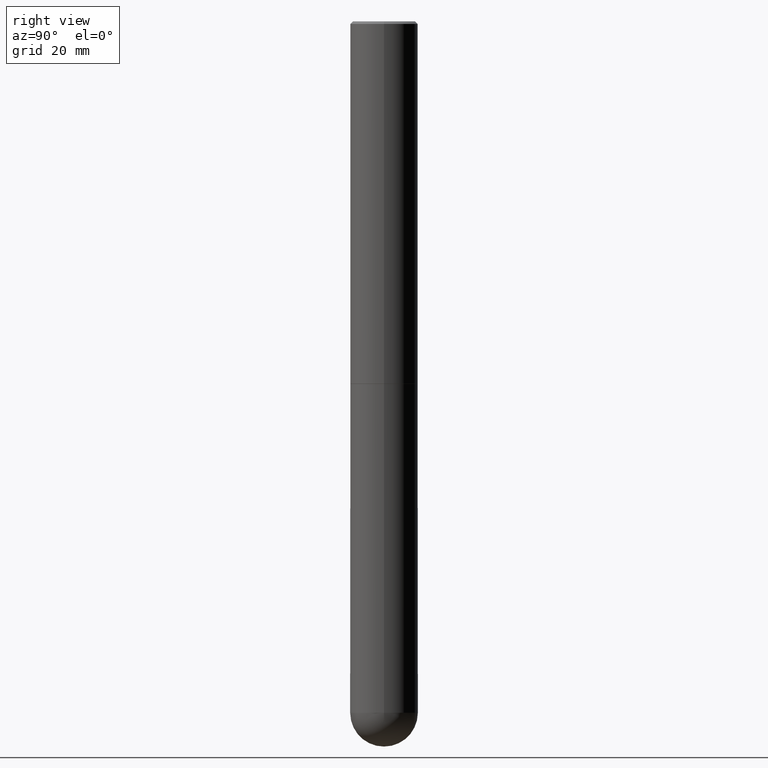
[diagram: clean part render]
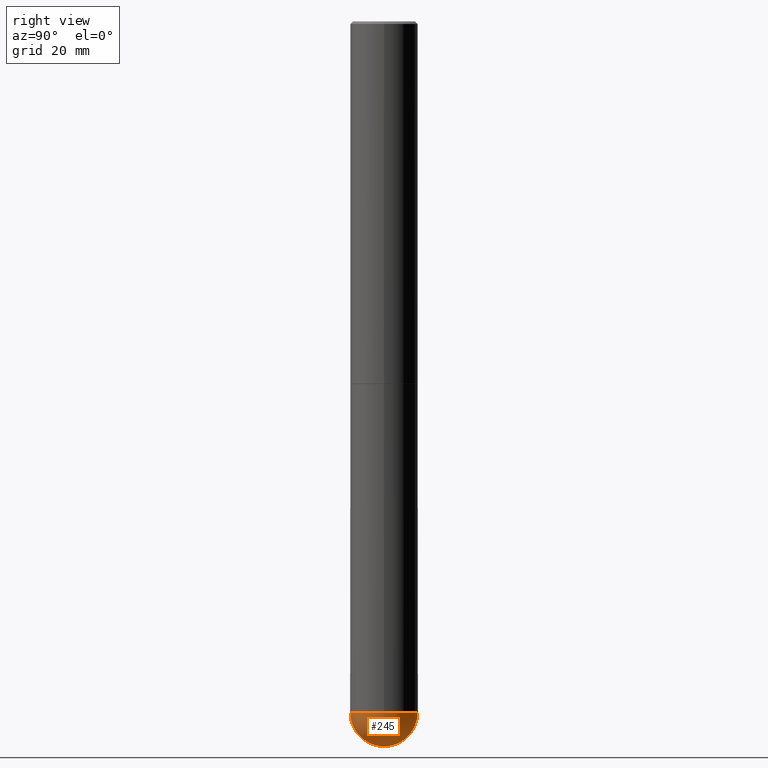
[diagram: same view with one face highlighted and labeled with its STEP entity id]
A machine part, right view. The second image highlights one B-rep face of the part: STEP entity #245.
In plain terms, the highlighted spherical surface has radius 7.0002 mm.
Its self-contained STEP definition (entity closure, byte-faithful):
#8 = CIRCLE ( 'NONE', #143, 0.2756000000000000671 ) ;
#16 = VERTEX_POINT ( 'NONE', #103 ) ;
#19 = DIRECTION ( 'NONE',  ( -1.000000000000000000, 6.982962677686265922E-15, -4.883557194083112901E-29 ) ) ;
#31 = SPHERICAL_SURFACE ( 'NONE', #364, 0.2756000000000000671 ) ;
#45 = CARTESIAN_POINT ( 'NONE',  ( 1.376774483194169922E-28, -1.965669078955302449E-14, -5.629900000000000126 ) ) ;
#64 = DIRECTION ( 'NONE',  ( -2.445468806185136597E-29, 3.491481338843145583E-15, 1.000000000000000000 ) ) ;
#81 = AXIS2_PLACEMENT_3D ( 'NONE', #183, #179, #313 ) ;
#84 = DIRECTION ( 'NONE',  ( -1.000000000000000000, 7.105427357601001070E-15, -4.926315508542082329E-29 ) ) ;
#95 = VERTEX_POINT ( 'NONE', #382 ) ;
#103 = CARTESIAN_POINT ( 'NONE',  ( 0.2756000000000000671, -1.690749838334792865E-14, -5.629900000000000126 ) ) ;
#107 = EDGE_CURVE ( 'NONE', #361, #16, #132, .T. ) ;
#111 = DIRECTION ( 'NONE',  ( -7.105427357601001859E-15, -1.000000000000000000, 0.000000000000000000 ) ) ;
#118 = CIRCLE ( 'NONE', #270, 0.2756000000000000671 ) ;
#132 = CIRCLE ( 'NONE', #309, 0.2756000000000000671 ) ;
#143 = AXIS2_PLACEMENT_3D ( 'NONE', #339, #84, #111 ) ;
#164 = DIRECTION ( 'NONE',  ( -2.445468806185136597E-29, 3.491481338843145583E-15, 1.000000000000000000 ) ) ;
#179 = DIRECTION ( 'NONE',  ( 1.000000000000000000, -6.982962677686265922E-15, 4.883557194083112340E-29 ) ) ;
#183 = CARTESIAN_POINT ( 'NONE',  ( 1.343662505402781410E-28, -2.013087315769307636E-14, -5.629900000000000126 ) ) ;
#189 = EDGE_LOOP ( 'NONE', ( #327, #404, #289, #217 ) ) ;
#196 = DIRECTION ( 'NONE',  ( 1.000000000000000000, -6.982962677686264344E-15, 0.000000000000000000 ) ) ;
#217 = ORIENTED_EDGE ( 'NONE', *, *, #107, .F. ) ;
#232 = EDGE_CURVE ( 'NONE', #95, #316, #280, .T. ) ;
#245 = ADVANCED_FACE ( 'NONE', ( #381 ), #31, .T. ) ;
#249 = CARTESIAN_POINT ( 'NONE',  ( 1.343662505402781410E-28, -2.013087315769307636E-14, -5.629900000000000126 ) ) ;
#270 = AXIS2_PLACEMENT_3D ( 'NONE', #45, #64, #196 ) ;
#274 = DIRECTION ( 'NONE',  ( 6.982962677686265922E-15, 1.000000000000000000, -3.964946289788479319E-15 ) ) ;
#280 = CIRCLE ( 'NONE', #81, 0.2756000000000000671 ) ;
#288 = DIRECTION ( 'NONE',  ( 1.000000000000000000, -6.982962677686264344E-15, 0.000000000000000000 ) ) ;
#289 = ORIENTED_EDGE ( 'NONE', *, *, #338, .F. ) ;
#290 = CARTESIAN_POINT ( 'NONE',  ( 1.924504513970471427E-15, 0.2755999999999801942, -5.629900000000001015 ) ) ;
#309 = AXIS2_PLACEMENT_3D ( 'NONE', #393, #164, #288 ) ;
#313 = DIRECTION ( 'NONE',  ( 6.982962677686267499E-15, 1.000000000000000000, 0.000000000000000000 ) ) ;
#316 = VERTEX_POINT ( 'NONE', #290 ) ;
#317 = CARTESIAN_POINT ( 'NONE',  ( -1.958255779754700116E-15, -0.2756000000000199956, -5.629899999999999238 ) ) ;
#327 = ORIENTED_EDGE ( 'NONE', *, *, #398, .F. ) ;
#338 = EDGE_CURVE ( 'NONE', #16, #316, #118, .T. ) ;
#339 = CARTESIAN_POINT ( 'NONE',  ( 1.343662505402781410E-28, -2.013087315769307636E-14, -5.629900000000000126 ) ) ;
#361 = VERTEX_POINT ( 'NONE', #317 ) ;
#364 = AXIS2_PLACEMENT_3D ( 'NONE', #249, #19, #274 ) ;
#381 = FACE_OUTER_BOUND ( 'NONE', #189, .T. ) ;
#382 = CARTESIAN_POINT ( 'NONE',  ( 1.412238044847732931E-28, -2.107624978178599697E-14, -5.905499999999999972 ) ) ;
#393 = CARTESIAN_POINT ( 'NONE',  ( 1.376774483194169922E-28, -1.965669078955302449E-14, -5.629900000000000126 ) ) ;
#398 = EDGE_CURVE ( 'NONE', #95, #361, #8, .T. ) ;
#404 = ORIENTED_EDGE ( 'NONE', *, *, #232, .T. ) ;